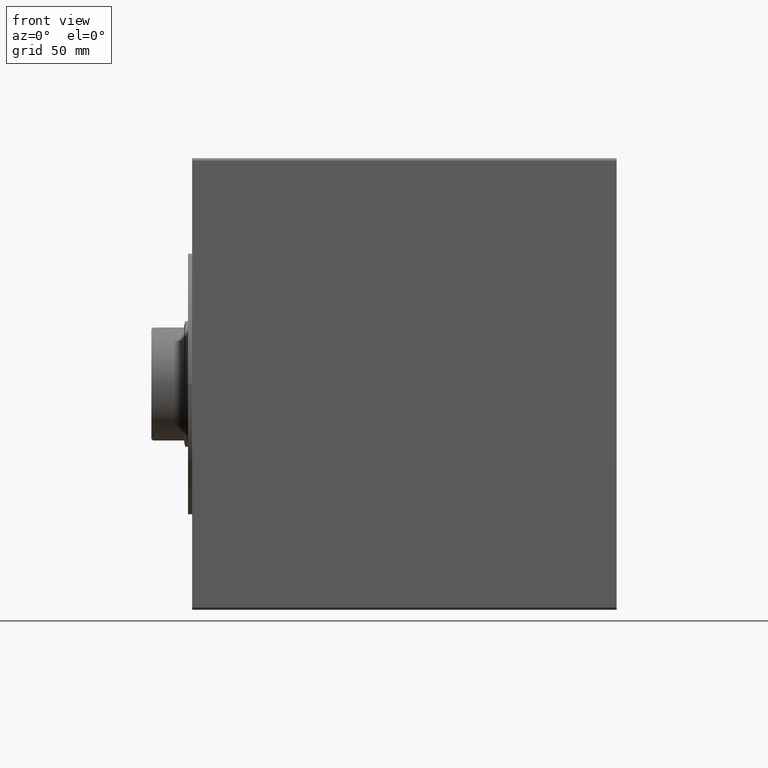
[diagram: clean part render]
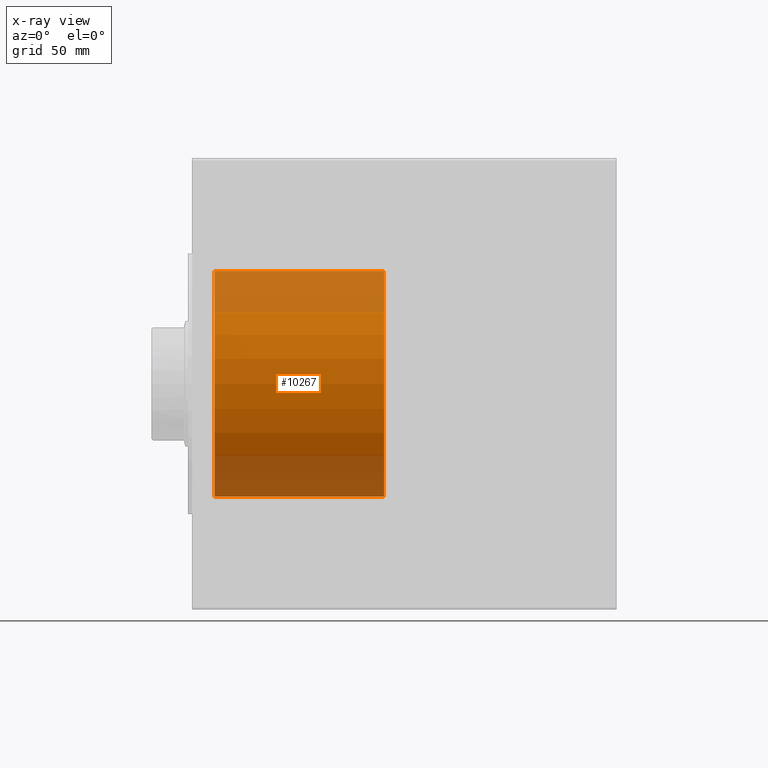
[diagram: x-ray — body ghosted, one internal face saturated and labeled with its STEP entity id]
A machine part, front view, then the same camera in x-ray: the body is ghosted and one INTERNAL B-rep face — a face not visible from any outside direction — is saturated and labeled: STEP entity #10267.
In plain terms, the highlighted cylindrical surface (partial cylindrical patch) has radius 50 mm, axis along (-1, -0, -0).
Its self-contained STEP definition (entity closure, byte-faithful):
#2074 = AXIS2_PLACEMENT_3D ( 'NONE', #19471, #37196, #33816 ) ;
#5016 = CARTESIAN_POINT ( 'NONE',  ( 84.99999999999998579, 0.000000000000000000, 50.00000000000000000 ) ) ;
#5152 = ORIENTED_EDGE ( 'NONE', *, *, #23043, .T. ) ;
#5245 = VERTEX_POINT ( 'NONE', #30137 ) ;
#5882 = VERTEX_POINT ( 'NONE', #11156 ) ;
#6037 = DIRECTION ( 'NONE',  ( -1.000000000000000000, -0.000000000000000000, -0.000000000000000000 ) ) ;
#7172 = EDGE_CURVE ( 'NONE', #12564, #5245, #40885, .T. ) ;
#9822 = DIRECTION ( 'NONE',  ( 0.000000000000000000, 0.000000000000000000, 1.000000000000000000 ) ) ;
#10267 = ADVANCED_FACE ( 'NONE', ( #30245 ), #13174, .F. ) ;
#11156 = CARTESIAN_POINT ( 'NONE',  ( 84.99999999999998579, 6.123233995736766085E-15, -50.00000000000000000 ) ) ;
#11356 = AXIS2_PLACEMENT_3D ( 'NONE', #26863, #40573, #9822 ) ;
#12408 = CARTESIAN_POINT ( 'NONE',  ( 10.00000000000000000, 6.123233995736766085E-15, -50.00000000000000000 ) ) ;
#12564 = VERTEX_POINT ( 'NONE', #5016 ) ;
#13174 = CYLINDRICAL_SURFACE ( 'NONE', #11356, 50.00000000000000000 ) ;
#15553 = EDGE_CURVE ( 'NONE', #5882, #30942, #33854, .T. ) ;
#16942 = EDGE_LOOP ( 'NONE', ( #25537, #40939, #5152, #24430 ) ) ;
#17564 = DIRECTION ( 'NONE',  ( 0.000000000000000000, 0.000000000000000000, 1.000000000000000000 ) ) ;
#18628 = DIRECTION ( 'NONE',  ( -1.000000000000000000, 0.000000000000000000, 0.000000000000000000 ) ) ;
#19471 = CARTESIAN_POINT ( 'NONE',  ( 10.00000000000000000, 0.000000000000000000, 0.000000000000000000 ) ) ;
#20366 = CARTESIAN_POINT ( 'NONE',  ( 84.99999999999998579, 6.123233995736766085E-15, -50.00000000000000000 ) ) ;
#20790 = EDGE_CURVE ( 'NONE', #5882, #12564, #41909, .T. ) ;
#23043 = EDGE_CURVE ( 'NONE', #30942, #5245, #25705, .T. ) ;
#23808 = CARTESIAN_POINT ( 'NONE',  ( 84.99999999999998579, 0.000000000000000000, 50.00000000000000000 ) ) ;
#24203 = VECTOR ( 'NONE', #6037, 1000.000000000000000 ) ;
#24430 = ORIENTED_EDGE ( 'NONE', *, *, #7172, .F. ) ;
#25537 = ORIENTED_EDGE ( 'NONE', *, *, #20790, .F. ) ;
#25705 = CIRCLE ( 'NONE', #2074, 50.00000000000000000 ) ;
#26863 = CARTESIAN_POINT ( 'NONE',  ( 84.99999999999998579, 0.000000000000000000, 0.000000000000000000 ) ) ;
#30137 = CARTESIAN_POINT ( 'NONE',  ( 10.00000000000000000, 0.000000000000000000, 50.00000000000000000 ) ) ;
#30245 = FACE_OUTER_BOUND ( 'NONE', #16942, .T. ) ;
#30942 = VERTEX_POINT ( 'NONE', #12408 ) ;
#31113 = AXIS2_PLACEMENT_3D ( 'NONE', #34636, #18628, #17564 ) ;
#33816 = DIRECTION ( 'NONE',  ( 0.000000000000000000, 0.000000000000000000, 1.000000000000000000 ) ) ;
#33854 = LINE ( 'NONE', #20366, #24203 ) ;
#34636 = CARTESIAN_POINT ( 'NONE',  ( 84.99999999999998579, 0.000000000000000000, 0.000000000000000000 ) ) ;
#36970 = VECTOR ( 'NONE', #37515, 1000.000000000000000 ) ;
#37196 = DIRECTION ( 'NONE',  ( -1.000000000000000000, 0.000000000000000000, 0.000000000000000000 ) ) ;
#37515 = DIRECTION ( 'NONE',  ( -1.000000000000000000, -0.000000000000000000, -0.000000000000000000 ) ) ;
#40573 = DIRECTION ( 'NONE',  ( -1.000000000000000000, -0.000000000000000000, -0.000000000000000000 ) ) ;
#40885 = LINE ( 'NONE', #23808, #36970 ) ;
#40939 = ORIENTED_EDGE ( 'NONE', *, *, #15553, .T. ) ;
#41909 = CIRCLE ( 'NONE', #31113, 50.00000000000000000 ) ;